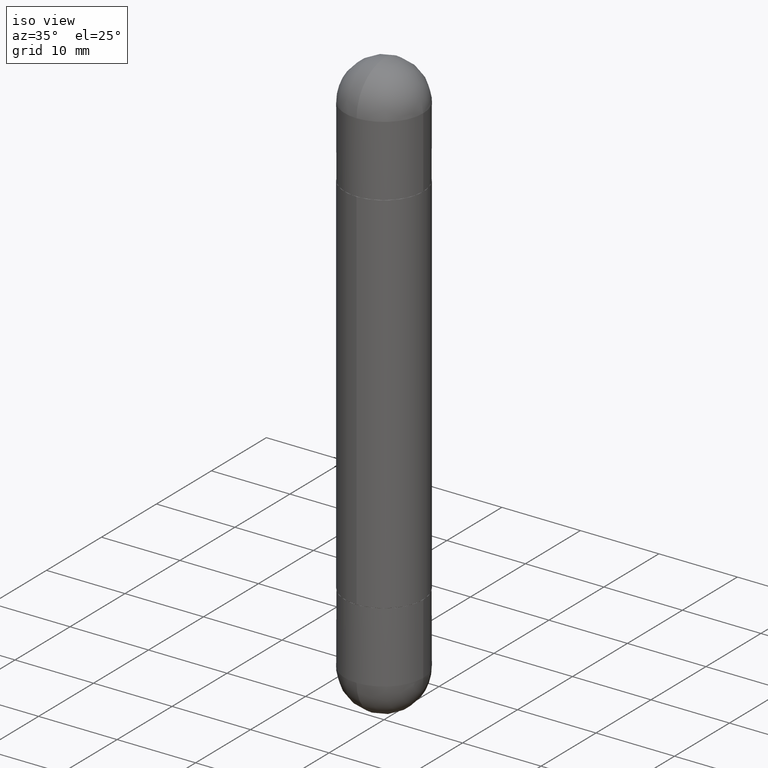
[diagram: clean part render]
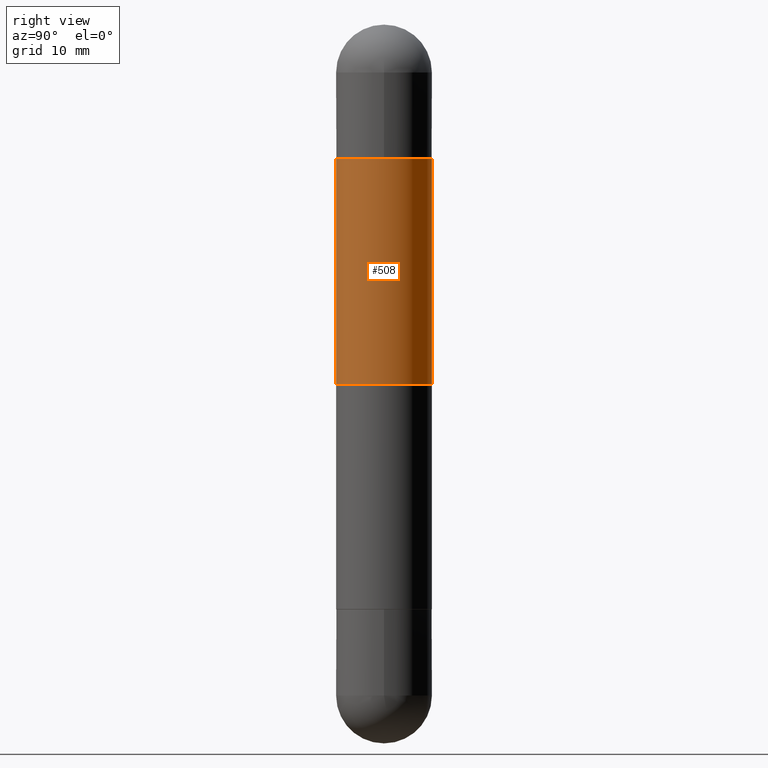
[diagram: tour spotlight — one face highlighted and labeled with its STEP entity id]
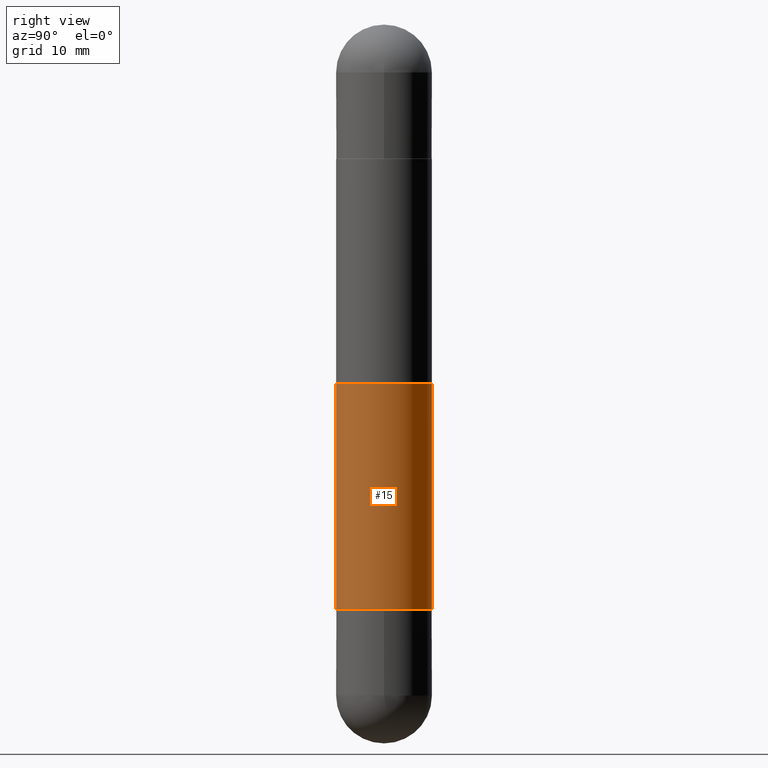
[diagram: tour spotlight — one face highlighted and labeled with its STEP entity id]
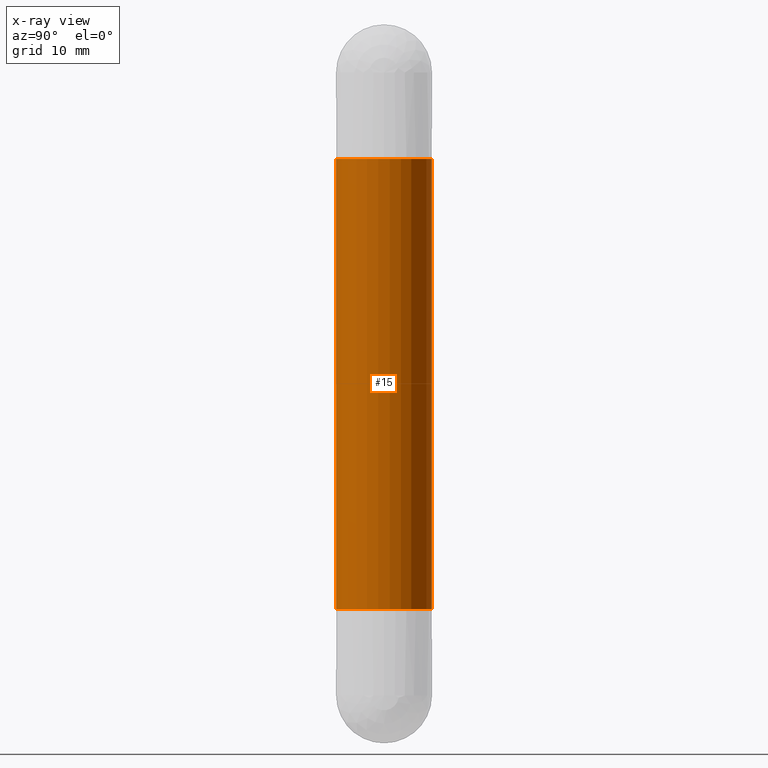
[diagram: x-ray of the same camera — body ghosted, this tour face saturated]
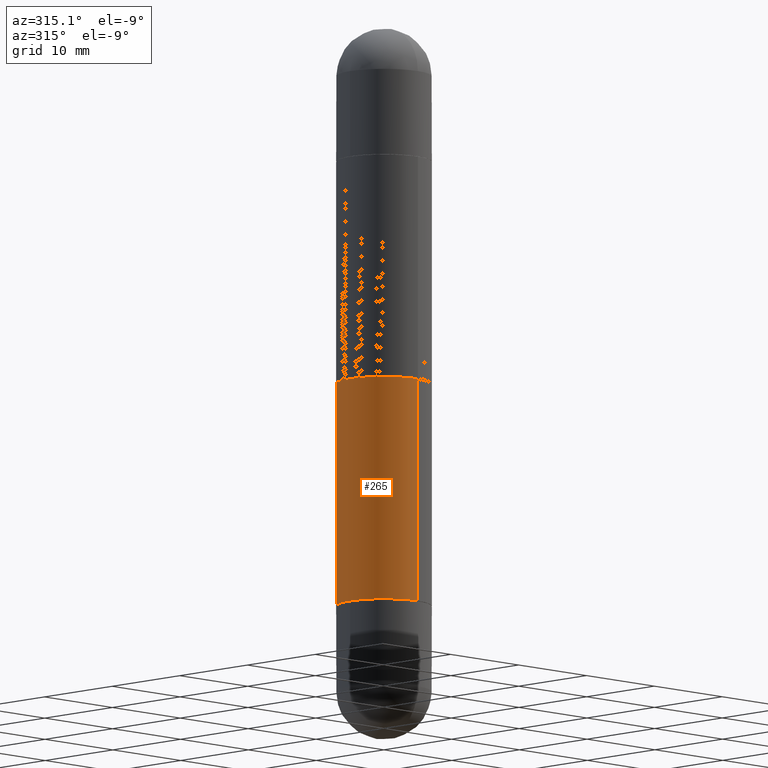
[diagram: tour spotlight — one face highlighted and labeled with its STEP entity id]
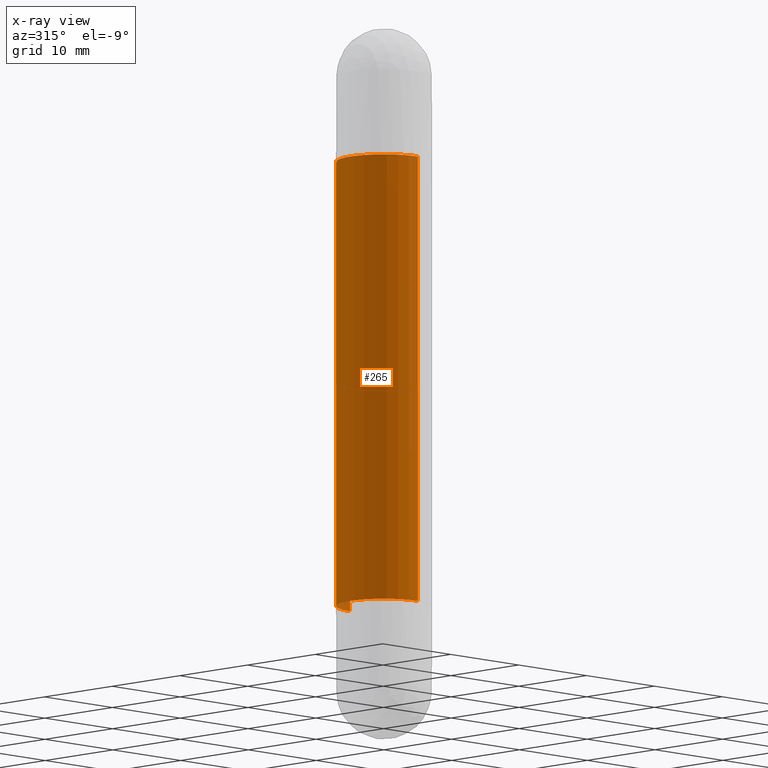
[diagram: x-ray of the same camera — body ghosted, this tour face saturated]
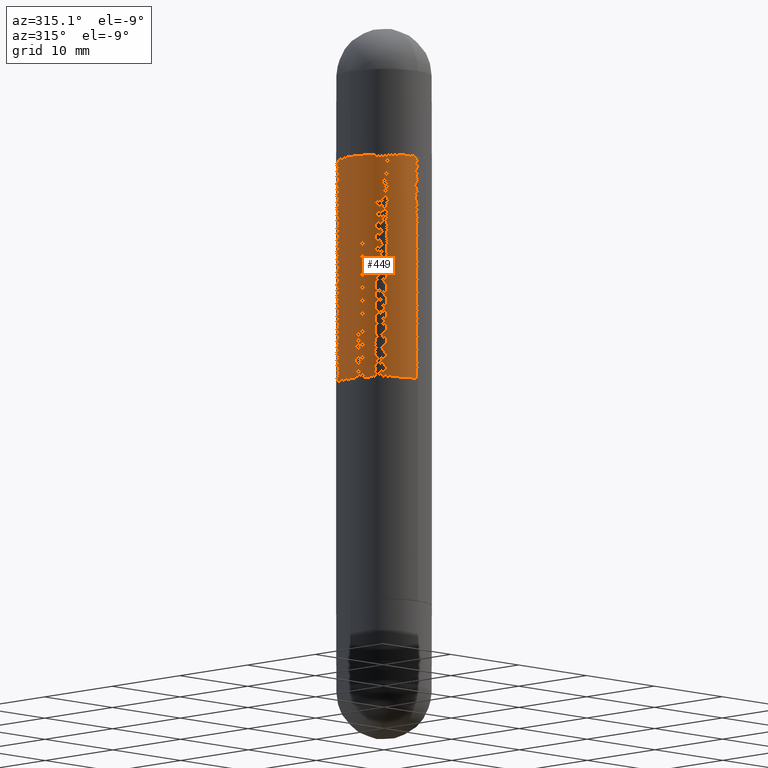
[diagram: tour spotlight — one face highlighted and labeled with its STEP entity id]
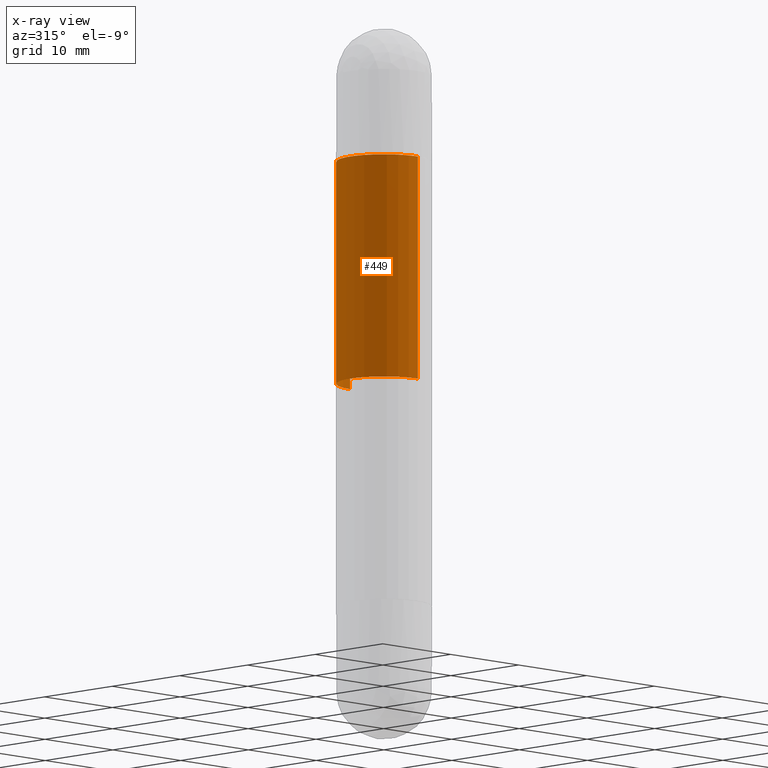
[diagram: x-ray of the same camera — body ghosted, this tour face saturated]
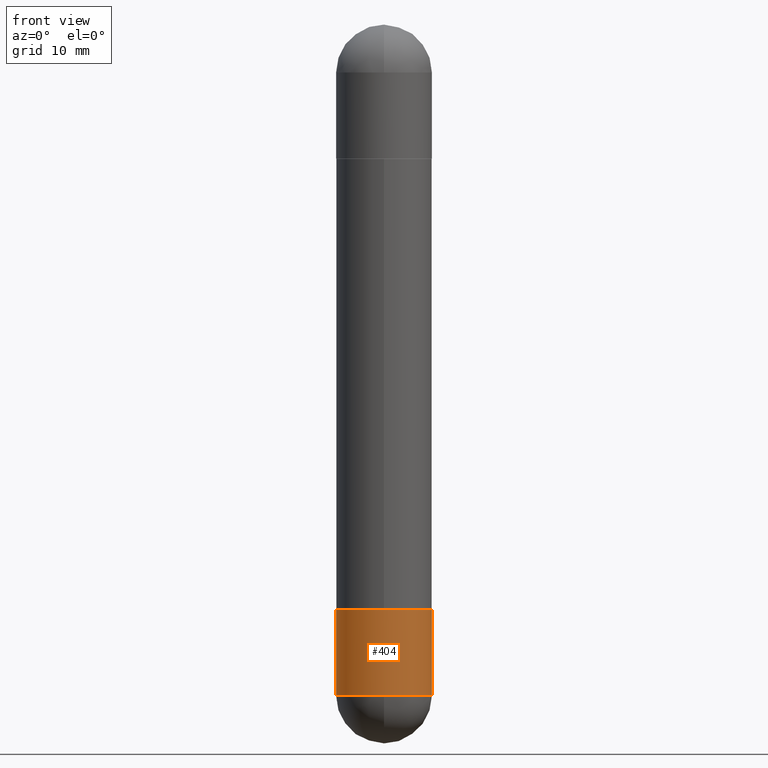
[diagram: tour spotlight — one face highlighted and labeled with its STEP entity id]
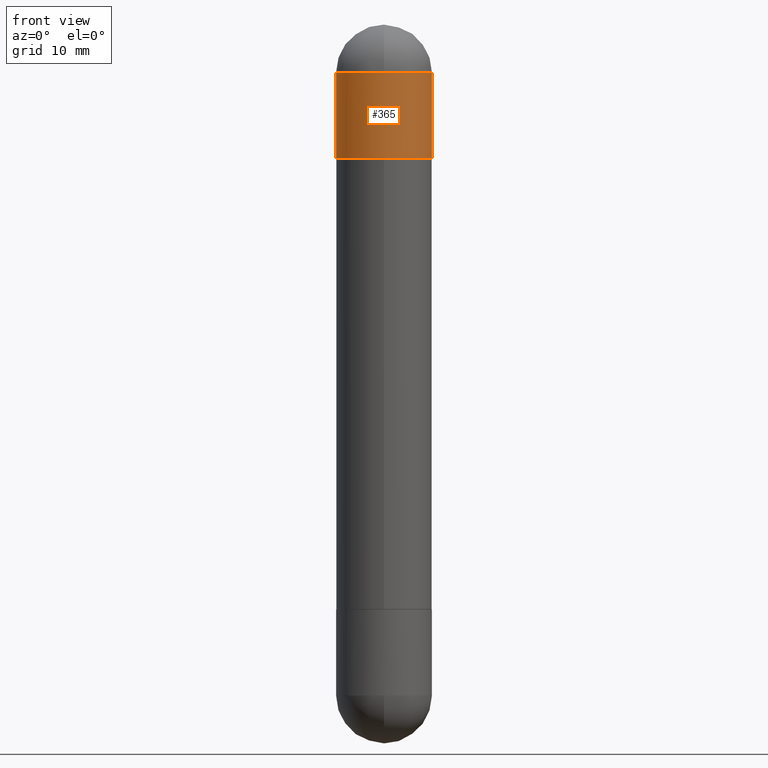
[diagram: tour spotlight — one face highlighted and labeled with its STEP entity id]
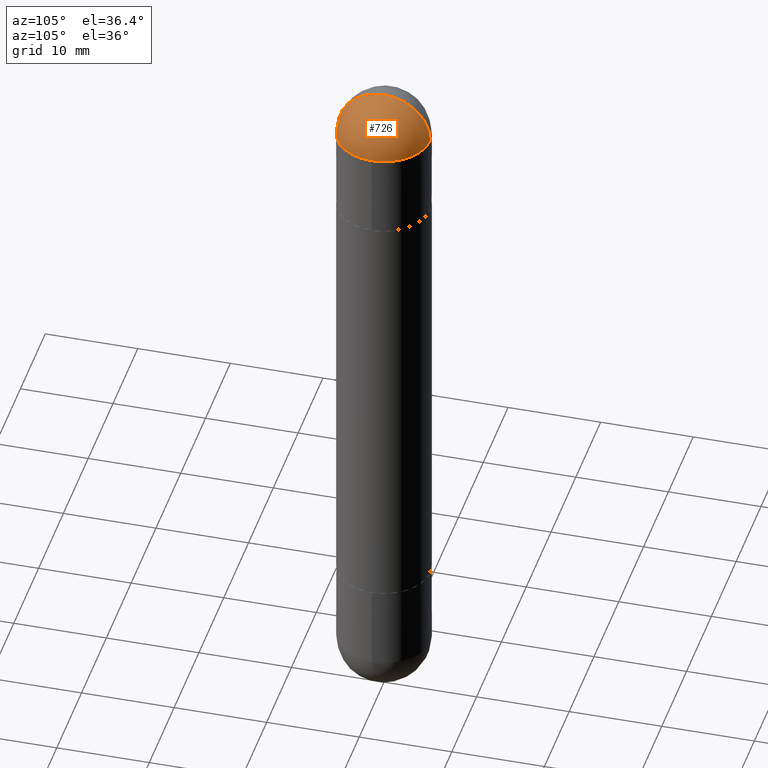
[diagram: tour spotlight — one face highlighted and labeled with its STEP entity id]
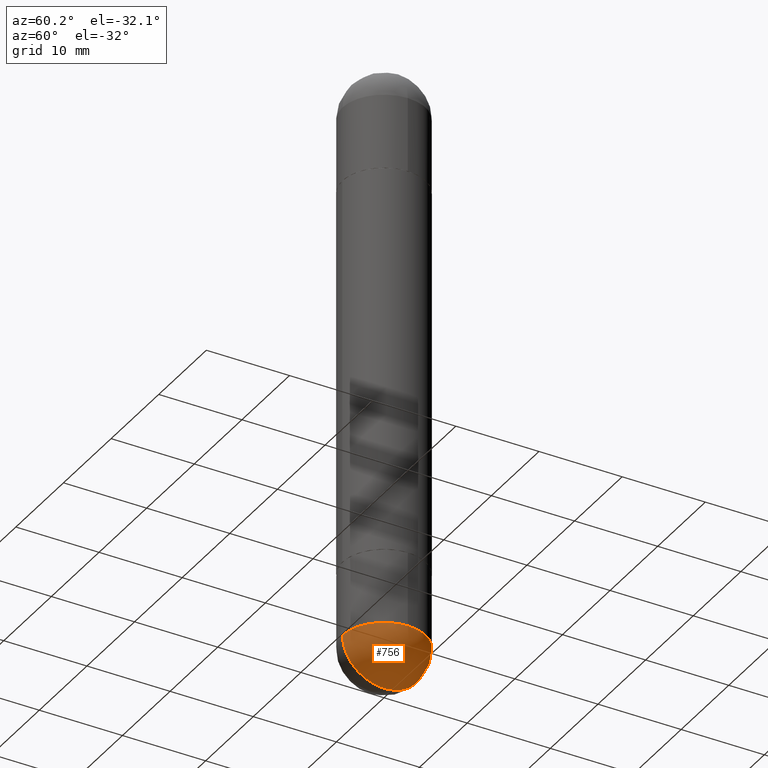
[diagram: tour spotlight — one face highlighted and labeled with its STEP entity id]
A machine part: a face-by-face anatomy tour. The part has 29 B-rep faces; the first image is the clean iso view, then the 8 largest visible faces are spotlighted one at a time (largest first), each with its STEP entity span.

Face 1 — right view, entity #508. In plain terms, the highlighted cylindrical surface (partial cylindrical patch) has radius 5 mm, axis along (-0, 0, -1).
Definition (entity closure, byte-faithful):
#16 = VERTEX_POINT ( 'NONE', #668 ) ;
#24 = CARTESIAN_POINT ( 'NONE',  ( 0.000000000000000000, 0.000000000000000000, -2.952799999999999869 ) ) ;
#81 = VECTOR ( 'NONE', #575, 39.37007874015748143 ) ;
#95 = CARTESIAN_POINT ( 'NONE',  ( -1.374596203102542397E-15, -0.1968500000000001360, -2.952800000000000313 ) ) ;
#117 = AXIS2_PLACEMENT_3D ( 'NONE', #470, #282, #343 ) ;
#119 = CARTESIAN_POINT ( 'NONE',  ( 3.609979118165281973E-29, -5.155554868828087801E-15, -1.476399999999999935 ) ) ;
#143 = CARTESIAN_POINT ( 'NONE',  ( 1.350489030861385580E-15, 0.1968499999999950012, -1.476399999999999935 ) ) ;
#169 = ORIENTED_EDGE ( 'NONE', *, *, #248, .T. ) ;
#184 = DIRECTION ( 'NONE',  ( -2.445122675538662904E-29, 3.491977017629428547E-15, -1.000000000000000000 ) ) ;
#248 = EDGE_CURVE ( 'NONE', #256, #479, #790, .T. ) ;
#256 = VERTEX_POINT ( 'NONE', #669 ) ;
#282 = DIRECTION ( 'NONE',  ( 2.445122675538663184E-29, -3.491977017629428547E-15, 1.000000000000000000 ) ) ;
#336 = ORIENTED_EDGE ( 'NONE', *, *, #581, .F. ) ;
#343 = DIRECTION ( 'NONE',  ( -6.982962677686265133E-15, -1.000000000000000000, -3.469453890861390051E-15 ) ) ;
#371 = DIRECTION ( 'NONE',  ( -1.000000000000000000, 0.000000000000000000, 0.000000000000000000 ) ) ;
#388 = EDGE_CURVE ( 'NONE', #500, #479, #509, .T. ) ;
#394 = DIRECTION ( 'NONE',  ( -6.982962677686265922E-15, -1.000000000000000000, -2.775563112689114723E-15 ) ) ;
#436 = EDGE_CURVE ( 'NONE', #16, #500, #518, .T. ) ;
#443 = DIRECTION ( 'NONE',  ( -0.000000000000000000, -0.000000000000000000, -1.000000000000000000 ) ) ;
#470 = CARTESIAN_POINT ( 'NONE',  ( 5.869761494898114064E-29, -8.382840028521204058E-15, -0.5522000000000002462 ) ) ;
#479 = VERTEX_POINT ( 'NONE', #527 ) ;
#500 = VERTEX_POINT ( 'NONE', #143 ) ;
#508 = ADVANCED_FACE ( 'NONE', ( #593 ), #597, .T. ) ;
#509 = CIRCLE ( 'NONE', #607, 0.1968500000000001360 ) ;
#513 = DIRECTION ( 'NONE',  ( -2.445122675538663184E-29, 3.491977017629428547E-15, -1.000000000000000000 ) ) ;
#518 = LINE ( 'NONE', #658, #81 ) ;
#527 = CARTESIAN_POINT ( 'NONE',  ( -1.374596203102494868E-15, -0.1968500000000052985, -1.476399999999999935 ) ) ;
#564 = EDGE_LOOP ( 'NONE', ( #764, #336, #169, #763 ) ) ;
#575 = DIRECTION ( 'NONE',  ( -2.445122675538662904E-29, 3.491977017629428547E-15, -1.000000000000000000 ) ) ;
#581 = EDGE_CURVE ( 'NONE', #256, #16, #784, .T. ) ;
#593 = FACE_OUTER_BOUND ( 'NONE', #564, .T. ) ;
#597 = CYLINDRICAL_SURFACE ( 'NONE', #724, 0.1968500000000001360 ) ;
#607 = AXIS2_PLACEMENT_3D ( 'NONE', #119, #443, #371 ) ;
#658 = CARTESIAN_POINT ( 'NONE',  ( 1.350489030861326809E-15, 0.1968500000000001360, -2.952799999999998981 ) ) ;
#668 = CARTESIAN_POINT ( 'NONE',  ( 1.350489030861386763E-15, 0.1968499999999919203, -0.5521999999999994690 ) ) ;
#669 = CARTESIAN_POINT ( 'NONE',  ( -1.374596203102485008E-15, -0.1968500000000087125, -0.5522000000000009123 ) ) ;
#689 = VECTOR ( 'NONE', #184, 39.37007874015748143 ) ;
#724 = AXIS2_PLACEMENT_3D ( 'NONE', #24, #513, #394 ) ;
#763 = ORIENTED_EDGE ( 'NONE', *, *, #388, .F. ) ;
#764 = ORIENTED_EDGE ( 'NONE', *, *, #436, .F. ) ;
#784 = CIRCLE ( 'NONE', #117, 0.1968500000000003303 ) ;
#790 = LINE ( 'NONE', #95, #689 ) ;

Face 2 — right view, entity #15. An x-ray twin of the same camera follows (body ghosted, this face saturated) — the face is partly hidden behind the body. In plain terms, the highlighted cylindrical surface (partial cylindrical patch) has radius 5 mm, axis along (-0, 0, -1).
Definition (entity closure, byte-faithful):
#15 = ADVANCED_FACE ( 'NONE', ( #346 ), #608, .T. ) ;
#44 = DIRECTION ( 'NONE',  ( -2.445122675538663184E-29, 3.491977017629428547E-15, -1.000000000000000000 ) ) ;
#88 = EDGE_CURVE ( 'NONE', #660, #519, #127, .T. ) ;
#109 = CARTESIAN_POINT ( 'NONE',  ( 1.350489030861326809E-15, 0.1968500000000001360, -2.952799999999998981 ) ) ;
#113 = EDGE_LOOP ( 'NONE', ( #174, #775, #205, #122 ) ) ;
#122 = ORIENTED_EDGE ( 'NONE', *, *, #383, .T. ) ;
#127 = CIRCLE ( 'NONE', #609, 0.1968500000000003303 ) ;
#134 = EDGE_CURVE ( 'NONE', #660, #298, #312, .T. ) ;
#174 = ORIENTED_EDGE ( 'NONE', *, *, #678, .F. ) ;
#176 = CIRCLE ( 'NONE', #635, 0.1968500000000003303 ) ;
#205 = ORIENTED_EDGE ( 'NONE', *, *, #134, .T. ) ;
#231 = LINE ( 'NONE', #109, #482 ) ;
#251 = VECTOR ( 'NONE', #640, 39.37007874015748143 ) ;
#261 = CARTESIAN_POINT ( 'NONE',  ( 5.869761494898114064E-29, -8.382840028521204058E-15, -2.400599999999999401 ) ) ;
#264 = CARTESIAN_POINT ( 'NONE',  ( 1.350489030861386763E-15, 0.1968499999999919203, -0.5521999999999994690 ) ) ;
#298 = VERTEX_POINT ( 'NONE', #684 ) ;
#312 = LINE ( 'NONE', #502, #251 ) ;
#346 = FACE_OUTER_BOUND ( 'NONE', #113, .T. ) ;
#361 = DIRECTION ( 'NONE',  ( -2.445122675538662904E-29, 3.491977017629428547E-15, -1.000000000000000000 ) ) ;
#364 = DIRECTION ( 'NONE',  ( -6.982962677686265133E-15, -1.000000000000000000, 4.163344669033668535E-15 ) ) ;
#383 = EDGE_CURVE ( 'NONE', #298, #389, #176, .T. ) ;
#389 = VERTEX_POINT ( 'NONE', #627 ) ;
#482 = VECTOR ( 'NONE', #361, 39.37007874015748143 ) ;
#485 = DIRECTION ( 'NONE',  ( -2.445122675538663184E-29, 3.491977017629428547E-15, 1.000000000000000000 ) ) ;
#502 = CARTESIAN_POINT ( 'NONE',  ( -1.374596203102542397E-15, -0.1968500000000001360, -2.952800000000000313 ) ) ;
#519 = VERTEX_POINT ( 'NONE', #264 ) ;
#521 = DIRECTION ( 'NONE',  ( 2.445122675538663184E-29, -3.491977017629428547E-15, 1.000000000000000000 ) ) ;
#538 = CARTESIAN_POINT ( 'NONE',  ( 0.000000000000000000, 0.000000000000000000, -2.952799999999999869 ) ) ;
#541 = CARTESIAN_POINT ( 'NONE',  ( -1.374596203102485008E-15, -0.1968500000000087125, -0.5522000000000009123 ) ) ;
#608 = CYLINDRICAL_SURFACE ( 'NONE', #757, 0.1968500000000001360 ) ;
#609 = AXIS2_PLACEMENT_3D ( 'NONE', #710, #521, #781 ) ;
#627 = CARTESIAN_POINT ( 'NONE',  ( 1.350489030861363491E-15, 0.1968499999999919481, -2.400600000000000289 ) ) ;
#635 = AXIS2_PLACEMENT_3D ( 'NONE', #261, #485, #364 ) ;
#640 = DIRECTION ( 'NONE',  ( -2.445122675538662904E-29, 3.491977017629428547E-15, -1.000000000000000000 ) ) ;
#660 = VERTEX_POINT ( 'NONE', #541 ) ;
#678 = EDGE_CURVE ( 'NONE', #519, #389, #231, .T. ) ;
#684 = CARTESIAN_POINT ( 'NONE',  ( -1.374596203102485008E-15, -0.1968500000000086847, -2.400599999999998513 ) ) ;
#710 = CARTESIAN_POINT ( 'NONE',  ( 5.869761494898114064E-29, -8.382840028521204058E-15, -0.5522000000000002462 ) ) ;
#757 = AXIS2_PLACEMENT_3D ( 'NONE', #538, #44, #794 ) ;
#775 = ORIENTED_EDGE ( 'NONE', *, *, #88, .F. ) ;
#781 = DIRECTION ( 'NONE',  ( -6.982962677686265133E-15, -1.000000000000000000, -3.469453890861390051E-15 ) ) ;
#794 = DIRECTION ( 'NONE',  ( -6.982962677686265922E-15, -1.000000000000000000, -2.775563112689114723E-15 ) ) ;

Face 3 — auxiliary view, entity #265. An x-ray twin of the same camera follows (body ghosted, this face saturated) — the face is partly hidden behind the body. In plain terms, the highlighted cylindrical surface (partial cylindrical patch) has radius 5 mm, axis along (-0, 0, -1).
Definition (entity closure, byte-faithful):
#65 = FACE_OUTER_BOUND ( 'NONE', #223, .T. ) ;
#72 = CYLINDRICAL_SURFACE ( 'NONE', #582, 0.1968500000000001360 ) ;
#107 = DIRECTION ( 'NONE',  ( -6.982962677686265133E-15, -1.000000000000000000, 4.163344669033668535E-15 ) ) ;
#109 = CARTESIAN_POINT ( 'NONE',  ( 1.350489030861326809E-15, 0.1968500000000001360, -2.952799999999998981 ) ) ;
#134 = EDGE_CURVE ( 'NONE', #660, #298, #312, .T. ) ;
#148 = ORIENTED_EDGE ( 'NONE', *, *, #134, .F. ) ;
#191 = EDGE_CURVE ( 'NONE', #389, #298, #595, .T. ) ;
#217 = AXIS2_PLACEMENT_3D ( 'NONE', #302, #738, #107 ) ;
#219 = EDGE_CURVE ( 'NONE', #519, #660, #351, .T. ) ;
#223 = EDGE_LOOP ( 'NONE', ( #569, #749, #286, #148 ) ) ;
#231 = LINE ( 'NONE', #109, #482 ) ;
#251 = VECTOR ( 'NONE', #640, 39.37007874015748143 ) ;
#264 = CARTESIAN_POINT ( 'NONE',  ( 1.350489030861386763E-15, 0.1968499999999919203, -0.5521999999999994690 ) ) ;
#265 = ADVANCED_FACE ( 'NONE', ( #65 ), #72, .T. ) ;
#286 = ORIENTED_EDGE ( 'NONE', *, *, #191, .T. ) ;
#298 = VERTEX_POINT ( 'NONE', #684 ) ;
#302 = CARTESIAN_POINT ( 'NONE',  ( 5.869761494898114064E-29, -8.382840028521204058E-15, -2.400599999999999401 ) ) ;
#312 = LINE ( 'NONE', #502, #251 ) ;
#313 = CARTESIAN_POINT ( 'NONE',  ( 0.000000000000000000, 0.000000000000000000, -2.952799999999999869 ) ) ;
#318 = DIRECTION ( 'NONE',  ( -6.982962677686265922E-15, -1.000000000000000000, -2.775563112689114723E-15 ) ) ;
#331 = CARTESIAN_POINT ( 'NONE',  ( 5.869761494898114064E-29, -8.382840028521204058E-15, -0.5522000000000002462 ) ) ;
#351 = CIRCLE ( 'NONE', #634, 0.1968500000000003303 ) ;
#361 = DIRECTION ( 'NONE',  ( -2.445122675538662904E-29, 3.491977017629428547E-15, -1.000000000000000000 ) ) ;
#389 = VERTEX_POINT ( 'NONE', #627 ) ;
#482 = VECTOR ( 'NONE', #361, 39.37007874015748143 ) ;
#502 = CARTESIAN_POINT ( 'NONE',  ( -1.374596203102542397E-15, -0.1968500000000001360, -2.952800000000000313 ) ) ;
#519 = VERTEX_POINT ( 'NONE', #264 ) ;
#541 = CARTESIAN_POINT ( 'NONE',  ( -1.374596203102485008E-15, -0.1968500000000087125, -0.5522000000000009123 ) ) ;
#557 = DIRECTION ( 'NONE',  ( -2.445122675538663184E-29, 3.491977017629428547E-15, -1.000000000000000000 ) ) ;
#569 = ORIENTED_EDGE ( 'NONE', *, *, #219, .F. ) ;
#582 = AXIS2_PLACEMENT_3D ( 'NONE', #313, #557, #318 ) ;
#587 = DIRECTION ( 'NONE',  ( -6.982962677686265133E-15, -1.000000000000000000, -3.469453890861390051E-15 ) ) ;
#595 = CIRCLE ( 'NONE', #217, 0.1968500000000003303 ) ;
#627 = CARTESIAN_POINT ( 'NONE',  ( 1.350489030861363491E-15, 0.1968499999999919481, -2.400600000000000289 ) ) ;
#634 = AXIS2_PLACEMENT_3D ( 'NONE', #331, #711, #587 ) ;
#640 = DIRECTION ( 'NONE',  ( -2.445122675538662904E-29, 3.491977017629428547E-15, -1.000000000000000000 ) ) ;
#660 = VERTEX_POINT ( 'NONE', #541 ) ;
#678 = EDGE_CURVE ( 'NONE', #519, #389, #231, .T. ) ;
#684 = CARTESIAN_POINT ( 'NONE',  ( -1.374596203102485008E-15, -0.1968500000000086847, -2.400599999999998513 ) ) ;
#711 = DIRECTION ( 'NONE',  ( 2.445122675538663184E-29, -3.491977017629428547E-15, 1.000000000000000000 ) ) ;
#738 = DIRECTION ( 'NONE',  ( -2.445122675538663184E-29, 3.491977017629428547E-15, 1.000000000000000000 ) ) ;
#749 = ORIENTED_EDGE ( 'NONE', *, *, #678, .T. ) ;

Face 4 — auxiliary view, entity #449. An x-ray twin of the same camera follows (body ghosted, this face saturated) — the face is partly hidden behind the body. In plain terms, the highlighted cylindrical surface (partial cylindrical patch) has radius 5 mm, axis along (-0, 0, -1).
Definition (entity closure, byte-faithful):
#4 = CIRCLE ( 'NONE', #82, 0.1968500000000001360 ) ;
#16 = VERTEX_POINT ( 'NONE', #668 ) ;
#26 = ORIENTED_EDGE ( 'NONE', *, *, #570, .F. ) ;
#81 = VECTOR ( 'NONE', #575, 39.37007874015748143 ) ;
#82 = AXIS2_PLACEMENT_3D ( 'NONE', #665, #421, #799 ) ;
#86 = CARTESIAN_POINT ( 'NONE',  ( 0.000000000000000000, 0.000000000000000000, -2.952799999999999869 ) ) ;
#95 = CARTESIAN_POINT ( 'NONE',  ( -1.374596203102542397E-15, -0.1968500000000001360, -2.952800000000000313 ) ) ;
#143 = CARTESIAN_POINT ( 'NONE',  ( 1.350489030861385580E-15, 0.1968499999999950012, -1.476399999999999935 ) ) ;
#184 = DIRECTION ( 'NONE',  ( -2.445122675538662904E-29, 3.491977017629428547E-15, -1.000000000000000000 ) ) ;
#213 = CYLINDRICAL_SURFACE ( 'NONE', #467, 0.1968500000000001360 ) ;
#221 = DIRECTION ( 'NONE',  ( 2.445122675538663184E-29, -3.491977017629428547E-15, 1.000000000000000000 ) ) ;
#225 = CARTESIAN_POINT ( 'NONE',  ( 5.869761494898114064E-29, -8.382840028521204058E-15, -0.5522000000000002462 ) ) ;
#248 = EDGE_CURVE ( 'NONE', #256, #479, #790, .T. ) ;
#256 = VERTEX_POINT ( 'NONE', #669 ) ;
#283 = DIRECTION ( 'NONE',  ( -6.982962677686265133E-15, -1.000000000000000000, -3.469453890861390051E-15 ) ) ;
#316 = AXIS2_PLACEMENT_3D ( 'NONE', #225, #221, #283 ) ;
#332 = DIRECTION ( 'NONE',  ( -2.445122675538663184E-29, 3.491977017629428547E-15, -1.000000000000000000 ) ) ;
#354 = ORIENTED_EDGE ( 'NONE', *, *, #436, .T. ) ;
#421 = DIRECTION ( 'NONE',  ( -0.000000000000000000, -0.000000000000000000, -1.000000000000000000 ) ) ;
#436 = EDGE_CURVE ( 'NONE', #16, #500, #518, .T. ) ;
#449 = ADVANCED_FACE ( 'NONE', ( #450 ), #213, .T. ) ;
#450 = FACE_OUTER_BOUND ( 'NONE', #694, .T. ) ;
#467 = AXIS2_PLACEMENT_3D ( 'NONE', #86, #332, #506 ) ;
#479 = VERTEX_POINT ( 'NONE', #527 ) ;
#500 = VERTEX_POINT ( 'NONE', #143 ) ;
#506 = DIRECTION ( 'NONE',  ( -6.982962677686265922E-15, -1.000000000000000000, -2.775563112689114723E-15 ) ) ;
#518 = LINE ( 'NONE', #658, #81 ) ;
#527 = CARTESIAN_POINT ( 'NONE',  ( -1.374596203102494868E-15, -0.1968500000000052985, -1.476399999999999935 ) ) ;
#537 = CIRCLE ( 'NONE', #316, 0.1968500000000003303 ) ;
#570 = EDGE_CURVE ( 'NONE', #16, #256, #537, .T. ) ;
#575 = DIRECTION ( 'NONE',  ( -2.445122675538662904E-29, 3.491977017629428547E-15, -1.000000000000000000 ) ) ;
#589 = ORIENTED_EDGE ( 'NONE', *, *, #248, .F. ) ;
#658 = CARTESIAN_POINT ( 'NONE',  ( 1.350489030861326809E-15, 0.1968500000000001360, -2.952799999999998981 ) ) ;
#665 = CARTESIAN_POINT ( 'NONE',  ( 3.609979118165281973E-29, -5.155554868828087801E-15, -1.476399999999999935 ) ) ;
#668 = CARTESIAN_POINT ( 'NONE',  ( 1.350489030861386763E-15, 0.1968499999999919203, -0.5521999999999994690 ) ) ;
#669 = CARTESIAN_POINT ( 'NONE',  ( -1.374596203102485008E-15, -0.1968500000000087125, -0.5522000000000009123 ) ) ;
#670 = EDGE_CURVE ( 'NONE', #479, #500, #4, .T. ) ;
#689 = VECTOR ( 'NONE', #184, 39.37007874015748143 ) ;
#694 = EDGE_LOOP ( 'NONE', ( #26, #354, #734, #589 ) ) ;
#734 = ORIENTED_EDGE ( 'NONE', *, *, #670, .F. ) ;
#790 = LINE ( 'NONE', #95, #689 ) ;
#799 = DIRECTION ( 'NONE',  ( -1.000000000000000000, 0.000000000000000000, 0.000000000000000000 ) ) ;

Face 5 — front view, entity #404. In plain terms, the highlighted cylindrical surface (partial cylindrical patch) has radius 5 mm, axis along (-0, 0, 1).
Definition (entity closure, byte-faithful):
#11 = DIRECTION ( 'NONE',  ( -2.445468806185136597E-29, 3.491481338843145583E-15, 1.000000000000000000 ) ) ;
#13 = DIRECTION ( 'NONE',  ( -2.445468806185136597E-29, 3.491481338843145583E-15, 1.000000000000000000 ) ) ;
#17 = DIRECTION ( 'NONE',  ( 1.000000000000000000, -6.982962677686262766E-15, 0.000000000000000000 ) ) ;
#22 = DIRECTION ( 'NONE',  ( -2.445468806185136597E-29, 3.491481338843145583E-15, 1.000000000000000000 ) ) ;
#61 = VECTOR ( 'NONE', #699, 39.37007874015748143 ) ;
#69 = DIRECTION ( 'NONE',  ( 1.000000000000000000, -6.982962677686266711E-15, 0.000000000000000000 ) ) ;
#101 = CIRCLE ( 'NONE', #455, 0.1968500000000000527 ) ;
#110 = DIRECTION ( 'NONE',  ( -2.445468806185136597E-29, 3.491481338843145583E-15, 1.000000000000000000 ) ) ;
#128 = CARTESIAN_POINT ( 'NONE',  ( -0.1968500000000000527, -7.605041414231473522E-15, -2.755949999999999900 ) ) ;
#160 = VECTOR ( 'NONE', #337, 39.37007874015748143 ) ;
#172 = VERTEX_POINT ( 'NONE', #652 ) ;
#206 = EDGE_CURVE ( 'NONE', #353, #408, #416, .T. ) ;
#238 = DIRECTION ( 'NONE',  ( 1.000000000000000000, -6.982962677686266711E-15, 0.000000000000000000 ) ) ;
#244 = CARTESIAN_POINT ( 'NONE',  ( 6.739589756405927064E-29, -9.622347995784766935E-15, -2.755949999999999900 ) ) ;
#249 = CARTESIAN_POINT ( 'NONE',  ( 0.1968500000000000527, -1.374596203102542003E-15, 9.598753983154302260E-30 ) ) ;
#276 = CARTESIAN_POINT ( 'NONE',  ( 5.873037884934223228E-29, -8.385141583365697263E-15, -2.401599999999999735 ) ) ;
#337 = DIRECTION ( 'NONE',  ( -2.445468806185136877E-29, 3.491481338843145188E-15, 1.000000000000000000 ) ) ;
#353 = VERTEX_POINT ( 'NONE', #128 ) ;
#357 = CARTESIAN_POINT ( 'NONE',  ( 0.1968500000000000250, -9.759737786468237294E-15, -2.401599999999999735 ) ) ;
#374 = EDGE_CURVE ( 'NONE', #408, #514, #101, .T. ) ;
#377 = LINE ( 'NONE', #249, #61 ) ;
#398 = CYLINDRICAL_SURFACE ( 'NONE', #492, 0.1968500000000000527 ) ;
#400 = DIRECTION ( 'NONE',  ( 1.000000000000000000, -6.982962677686266711E-15, 4.876176775795935793E-29 ) ) ;
#404 = ADVANCED_FACE ( 'NONE', ( #461 ), #398, .T. ) ;
#408 = VERTEX_POINT ( 'NONE', #787 ) ;
#416 = CIRCLE ( 'NONE', #649, 0.1968500000000000527 ) ;
#422 = EDGE_CURVE ( 'NONE', #172, #630, #662, .T. ) ;
#455 = AXIS2_PLACEMENT_3D ( 'NONE', #697, #11, #69 ) ;
#461 = FACE_OUTER_BOUND ( 'NONE', #786, .T. ) ;
#481 = EDGE_CURVE ( 'NONE', #353, #172, #645, .T. ) ;
#492 = AXIS2_PLACEMENT_3D ( 'NONE', #641, #13, #400 ) ;
#514 = VERTEX_POINT ( 'NONE', #588 ) ;
#548 = ORIENTED_EDGE ( 'NONE', *, *, #206, .T. ) ;
#549 = ORIENTED_EDGE ( 'NONE', *, *, #422, .F. ) ;
#588 = CARTESIAN_POINT ( 'NONE',  ( 0.1968500000000000527, -1.037834099267777371E-14, -2.755949999999999900 ) ) ;
#630 = VERTEX_POINT ( 'NONE', #357 ) ;
#641 = CARTESIAN_POINT ( 'NONE',  ( 0.000000000000000000, 0.000000000000000000, 0.000000000000000000 ) ) ;
#645 = LINE ( 'NONE', #718, #160 ) ;
#649 = AXIS2_PLACEMENT_3D ( 'NONE', #244, #110, #238 ) ;
#652 = CARTESIAN_POINT ( 'NONE',  ( -0.1968500000000000250, -7.605041414231473522E-15, -2.401599999999999735 ) ) ;
#659 = ORIENTED_EDGE ( 'NONE', *, *, #687, .T. ) ;
#662 = CIRCLE ( 'NONE', #796, 0.1968500000000000250 ) ;
#675 = ORIENTED_EDGE ( 'NONE', *, *, #481, .F. ) ;
#687 = EDGE_CURVE ( 'NONE', #514, #630, #377, .T. ) ;
#697 = CARTESIAN_POINT ( 'NONE',  ( 6.739589756405927064E-29, -9.622347995784766935E-15, -2.755949999999999900 ) ) ;
#699 = DIRECTION ( 'NONE',  ( -2.445468806185136877E-29, 3.491481338843145188E-15, 1.000000000000000000 ) ) ;
#718 = CARTESIAN_POINT ( 'NONE',  ( -0.1968500000000000527, 1.398703375343757590E-15, -9.682923725166785079E-30 ) ) ;
#719 = ORIENTED_EDGE ( 'NONE', *, *, #374, .T. ) ;
#786 = EDGE_LOOP ( 'NONE', ( #675, #548, #719, #659, #549 ) ) ;
#787 = CARTESIAN_POINT ( 'NONE',  ( -1.398703375343692115E-15, -0.1968500000000099892, -2.755949999999999456 ) ) ;
#796 = AXIS2_PLACEMENT_3D ( 'NONE', #276, #22, #17 ) ;

Face 6 — front view, entity #365. In plain terms, the highlighted cylindrical surface (partial cylindrical patch) has radius 5 mm, axis along (-0, 0, -1).
Definition (entity closure, byte-faithful):
#2 = DIRECTION ( 'NONE',  ( 1.000000000000000000, -6.982962677686266711E-15, 0.000000000000000000 ) ) ;
#29 = AXIS2_PLACEMENT_3D ( 'NONE', #171, #601, #478 ) ;
#87 = EDGE_LOOP ( 'NONE', ( #695, #692, #310, #800, #535 ) ) ;
#96 = DIRECTION ( 'NONE',  ( 1.000000000000000000, -6.982962677686266711E-15, 0.000000000000000000 ) ) ;
#104 = AXIS2_PLACEMENT_3D ( 'NONE', #330, #460, #806 ) ;
#114 = CYLINDRICAL_SURFACE ( 'NONE', #621, 0.1968500000000000527 ) ;
#162 = LINE ( 'NONE', #232, #495 ) ;
#163 = EDGE_CURVE ( 'NONE', #270, #624, #162, .T. ) ;
#171 = CARTESIAN_POINT ( 'NONE',  ( 5.873037884934223228E-29, -8.385141583365697263E-15, -0.5512000000000001343 ) ) ;
#183 = EDGE_CURVE ( 'NONE', #680, #270, #458, .T. ) ;
#186 = CARTESIAN_POINT ( 'NONE',  ( 0.1968500000000000527, -1.037834099267777529E-14, -0.1968499999999998307 ) ) ;
#188 = CIRCLE ( 'NONE', #29, 0.1968500000000000250 ) ;
#196 = LINE ( 'NONE', #438, #241 ) ;
#232 = CARTESIAN_POINT ( 'NONE',  ( 0.1968500000000000527, -1.374596203102542003E-15, -2.952799999999999869 ) ) ;
#241 = VECTOR ( 'NONE', #483, 39.37007874015748143 ) ;
#270 = VERTEX_POINT ( 'NONE', #186 ) ;
#310 = ORIENTED_EDGE ( 'NONE', *, *, #585, .T. ) ;
#325 = CARTESIAN_POINT ( 'NONE',  ( -0.1968500000000000527, -7.653255758713905881E-15, -0.1968499999999998307 ) ) ;
#330 = CARTESIAN_POINT ( 'NONE',  ( 6.739589756405927064E-29, -9.622347995784766935E-15, -0.1968499999999998307 ) ) ;
#365 = ADVANCED_FACE ( 'NONE', ( #746 ), #114, .T. ) ;
#396 = VERTEX_POINT ( 'NONE', #325 ) ;
#405 = CARTESIAN_POINT ( 'NONE',  ( 0.1968500000000000250, -9.759737786468237294E-15, -0.5512000000000001343 ) ) ;
#417 = CIRCLE ( 'NONE', #578, 0.1968500000000000527 ) ;
#432 = DIRECTION ( 'NONE',  ( -2.445468806185136877E-29, 3.491481338843145188E-15, -1.000000000000000000 ) ) ;
#434 = CARTESIAN_POINT ( 'NONE',  ( 0.000000000000000000, 0.000000000000000000, -2.952799999999999869 ) ) ;
#437 = VERTEX_POINT ( 'NONE', #778 ) ;
#438 = CARTESIAN_POINT ( 'NONE',  ( -0.1968500000000000527, 1.350489030861326415E-15, -2.952799999999999869 ) ) ;
#458 = CIRCLE ( 'NONE', #104, 0.1968500000000000527 ) ;
#460 = DIRECTION ( 'NONE',  ( 2.445468806185136597E-29, -3.491481338843145583E-15, 1.000000000000000000 ) ) ;
#478 = DIRECTION ( 'NONE',  ( 1.000000000000000000, -6.982962677686262766E-15, 0.000000000000000000 ) ) ;
#483 = DIRECTION ( 'NONE',  ( -2.445468806185136877E-29, 3.491481338843145188E-15, -1.000000000000000000 ) ) ;
#495 = VECTOR ( 'NONE', #432, 39.37007874015748143 ) ;
#535 = ORIENTED_EDGE ( 'NONE', *, *, #183, .F. ) ;
#578 = AXIS2_PLACEMENT_3D ( 'NONE', #803, #723, #96 ) ;
#584 = EDGE_CURVE ( 'NONE', #396, #680, #417, .T. ) ;
#585 = EDGE_CURVE ( 'NONE', #437, #624, #188, .T. ) ;
#601 = DIRECTION ( 'NONE',  ( 2.445468806185136597E-29, -3.491481338843145583E-15, 1.000000000000000000 ) ) ;
#621 = AXIS2_PLACEMENT_3D ( 'NONE', #434, #686, #2 ) ;
#624 = VERTEX_POINT ( 'NONE', #405 ) ;
#667 = CARTESIAN_POINT ( 'NONE',  ( -1.350489030861260940E-15, -0.1968500000000099892, -0.1968500000000005246 ) ) ;
#680 = VERTEX_POINT ( 'NONE', #667 ) ;
#686 = DIRECTION ( 'NONE',  ( -2.445468806185136597E-29, 3.491481338843145583E-15, -1.000000000000000000 ) ) ;
#692 = ORIENTED_EDGE ( 'NONE', *, *, #767, .T. ) ;
#695 = ORIENTED_EDGE ( 'NONE', *, *, #584, .F. ) ;
#723 = DIRECTION ( 'NONE',  ( 2.445468806185136597E-29, -3.491481338843145583E-15, 1.000000000000000000 ) ) ;
#746 = FACE_OUTER_BOUND ( 'NONE', #87, .T. ) ;
#767 = EDGE_CURVE ( 'NONE', #396, #437, #196, .T. ) ;
#778 = CARTESIAN_POINT ( 'NONE',  ( -0.1968500000000000250, -7.653255758713905881E-15, -0.5512000000000001343 ) ) ;
#800 = ORIENTED_EDGE ( 'NONE', *, *, #163, .F. ) ;
#803 = CARTESIAN_POINT ( 'NONE',  ( 6.739589756405927064E-29, -9.622347995784766935E-15, -0.1968499999999998307 ) ) ;
#806 = DIRECTION ( 'NONE',  ( 1.000000000000000000, -6.982962677686266711E-15, 0.000000000000000000 ) ) ;

Face 7 — auxiliary view, entity #726. In plain terms, the highlighted spherical surface has radius 5 mm.
Definition (entity closure, byte-faithful):
#10 = ORIENTED_EDGE ( 'NONE', *, *, #236, .T. ) ;
#21 = DIRECTION ( 'NONE',  ( -1.000000000000000000, 6.982962677686265922E-15, 4.883557194083112340E-29 ) ) ;
#54 = SPHERICAL_SURFACE ( 'NONE', #74, 0.1968500000000001915 ) ;
#74 = AXIS2_PLACEMENT_3D ( 'NONE', #124, #193, #431 ) ;
#104 = AXIS2_PLACEMENT_3D ( 'NONE', #330, #460, #806 ) ;
#124 = CARTESIAN_POINT ( 'NONE',  ( 6.408469978492040817E-29, -1.009653036392481565E-14, -0.1968499999999998307 ) ) ;
#155 = EDGE_CURVE ( 'NONE', #220, #680, #230, .T. ) ;
#158 = CARTESIAN_POINT ( 'NONE',  ( 6.739589756405927064E-29, -9.622347995784766935E-15, -0.1968499999999998307 ) ) ;
#178 = CARTESIAN_POINT ( 'NONE',  ( 6.408469978492040817E-29, -1.009653036392481565E-14, -0.1968499999999998307 ) ) ;
#179 = CIRCLE ( 'NONE', #646, 0.1968500000000001915 ) ;
#183 = EDGE_CURVE ( 'NONE', #680, #270, #458, .T. ) ;
#186 = CARTESIAN_POINT ( 'NONE',  ( 0.1968500000000000527, -1.037834099267777529E-14, -0.1968499999999998307 ) ) ;
#193 = DIRECTION ( 'NONE',  ( 1.000000000000000000, -6.982962677686265922E-15, -4.883557194083112340E-29 ) ) ;
#220 = VERTEX_POINT ( 'NONE', #392 ) ;
#224 = EDGE_CURVE ( 'NONE', #220, #552, #179, .T. ) ;
#230 = CIRCLE ( 'NONE', #562, 0.1968500000000001915 ) ;
#236 = EDGE_CURVE ( 'NONE', #270, #552, #480, .T. ) ;
#270 = VERTEX_POINT ( 'NONE', #186 ) ;
#330 = CARTESIAN_POINT ( 'NONE',  ( 6.739589756405927064E-29, -9.622347995784766935E-15, -0.1968499999999998307 ) ) ;
#392 = CARTESIAN_POINT ( 'NONE',  ( 6.898277487190832498E-29, -1.077177487935548192E-14, 3.414809992080329023E-16 ) ) ;
#403 = DIRECTION ( 'NONE',  ( 2.445468806185136597E-29, -3.491481338843145583E-15, 1.000000000000000000 ) ) ;
#431 = DIRECTION ( 'NONE',  ( 6.982962677686265922E-15, 1.000000000000000000, 3.469453890861392812E-15 ) ) ;
#447 = ORIENTED_EDGE ( 'NONE', *, *, #183, .T. ) ;
#458 = CIRCLE ( 'NONE', #104, 0.1968500000000000527 ) ;
#460 = DIRECTION ( 'NONE',  ( 2.445468806185136597E-29, -3.491481338843145583E-15, 1.000000000000000000 ) ) ;
#465 = DIRECTION ( 'NONE',  ( -6.982962677686265133E-15, -1.000000000000000000, 0.000000000000000000 ) ) ;
#480 = CIRCLE ( 'NONE', #674, 0.1968500000000000527 ) ;
#493 = ORIENTED_EDGE ( 'NONE', *, *, #155, .T. ) ;
#530 = CARTESIAN_POINT ( 'NONE',  ( 1.374596203102607873E-15, 0.1968499999999902550, -0.1968499999999991645 ) ) ;
#552 = VERTEX_POINT ( 'NONE', #530 ) ;
#556 = DIRECTION ( 'NONE',  ( 6.860497997771529985E-15, 1.000000000000000000, 0.000000000000000000 ) ) ;
#562 = AXIS2_PLACEMENT_3D ( 'NONE', #178, #619, #556 ) ;
#619 = DIRECTION ( 'NONE',  ( 1.000000000000000000, -6.860497997771530774E-15, -4.840798879624142912E-29 ) ) ;
#646 = AXIS2_PLACEMENT_3D ( 'NONE', #650, #21, #465 ) ;
#650 = CARTESIAN_POINT ( 'NONE',  ( 6.408469978492040817E-29, -1.009653036392481565E-14, -0.1968499999999998307 ) ) ;
#667 = CARTESIAN_POINT ( 'NONE',  ( -1.350489030861260940E-15, -0.1968500000000099892, -0.1968500000000005246 ) ) ;
#674 = AXIS2_PLACEMENT_3D ( 'NONE', #158, #403, #776 ) ;
#680 = VERTEX_POINT ( 'NONE', #667 ) ;
#721 = EDGE_LOOP ( 'NONE', ( #809, #493, #447, #10 ) ) ;
#726 = ADVANCED_FACE ( 'NONE', ( #745 ), #54, .T. ) ;
#745 = FACE_OUTER_BOUND ( 'NONE', #721, .T. ) ;
#776 = DIRECTION ( 'NONE',  ( 1.000000000000000000, -6.982962677686266711E-15, 0.000000000000000000 ) ) ;
#806 = DIRECTION ( 'NONE',  ( 1.000000000000000000, -6.982962677686266711E-15, 0.000000000000000000 ) ) ;
#809 = ORIENTED_EDGE ( 'NONE', *, *, #224, .F. ) ;

Face 8 — auxiliary view, entity #756. In plain terms, the highlighted spherical surface has radius 5 mm.
Definition (entity closure, byte-faithful):
#11 = DIRECTION ( 'NONE',  ( -2.445468806185136597E-29, 3.491481338843145583E-15, 1.000000000000000000 ) ) ;
#37 = ORIENTED_EDGE ( 'NONE', *, *, #471, .F. ) ;
#50 = EDGE_CURVE ( 'NONE', #412, #401, #192, .T. ) ;
#53 = DIRECTION ( 'NONE',  ( 1.000000000000000000, -6.982962677686265922E-15, 4.883557194083112340E-29 ) ) ;
#69 = DIRECTION ( 'NONE',  ( 1.000000000000000000, -6.982962677686266711E-15, 0.000000000000000000 ) ) ;
#89 = CARTESIAN_POINT ( 'NONE',  ( 6.739589756405927064E-29, -9.622347995784766935E-15, -2.755949999999999900 ) ) ;
#97 = ORIENTED_EDGE ( 'NONE', *, *, #427, .F. ) ;
#101 = CIRCLE ( 'NONE', #455, 0.1968500000000000527 ) ;
#152 = CARTESIAN_POINT ( 'NONE',  ( 6.898277487190832498E-29, -1.077177487935548192E-14, -2.952800000000000313 ) ) ;
#187 = FACE_OUTER_BOUND ( 'NONE', #804, .T. ) ;
#192 = CIRCLE ( 'NONE', #355, 0.1968500000000001915 ) ;
#208 = DIRECTION ( 'NONE',  ( -2.445468806185136597E-29, 3.491481338843145583E-15, 1.000000000000000000 ) ) ;
#215 = AXIS2_PLACEMENT_3D ( 'NONE', #278, #273, #522 ) ;
#258 = SPHERICAL_SURFACE ( 'NONE', #494, 0.1968500000000001915 ) ;
#273 = DIRECTION ( 'NONE',  ( -1.000000000000000000, 7.105427357601001070E-15, -4.926315508542082329E-29 ) ) ;
#278 = CARTESIAN_POINT ( 'NONE',  ( 6.408469978492040817E-29, -1.009653036392481565E-14, -2.755949999999999900 ) ) ;
#355 = AXIS2_PLACEMENT_3D ( 'NONE', #550, #53, #810 ) ;
#366 = AXIS2_PLACEMENT_3D ( 'NONE', #89, #208, #712 ) ;
#374 = EDGE_CURVE ( 'NONE', #408, #514, #101, .T. ) ;
#401 = VERTEX_POINT ( 'NONE', #716 ) ;
#408 = VERTEX_POINT ( 'NONE', #787 ) ;
#412 = VERTEX_POINT ( 'NONE', #152 ) ;
#427 = EDGE_CURVE ( 'NONE', #412, #408, #563, .T. ) ;
#455 = AXIS2_PLACEMENT_3D ( 'NONE', #697, #11, #69 ) ;
#459 = ORIENTED_EDGE ( 'NONE', *, *, #50, .T. ) ;
#471 = EDGE_CURVE ( 'NONE', #514, #401, #714, .T. ) ;
#484 = ORIENTED_EDGE ( 'NONE', *, *, #374, .F. ) ;
#494 = AXIS2_PLACEMENT_3D ( 'NONE', #814, #816, #765 ) ;
#514 = VERTEX_POINT ( 'NONE', #588 ) ;
#522 = DIRECTION ( 'NONE',  ( -7.105427357600999492E-15, -1.000000000000000000, 0.000000000000000000 ) ) ;
#550 = CARTESIAN_POINT ( 'NONE',  ( 6.408469978492040817E-29, -1.009653036392481565E-14, -2.755949999999999900 ) ) ;
#563 = CIRCLE ( 'NONE', #215, 0.1968500000000001915 ) ;
#588 = CARTESIAN_POINT ( 'NONE',  ( 0.1968500000000000527, -1.037834099267777371E-14, -2.755949999999999900 ) ) ;
#697 = CARTESIAN_POINT ( 'NONE',  ( 6.739589756405927064E-29, -9.622347995784766935E-15, -2.755949999999999900 ) ) ;
#712 = DIRECTION ( 'NONE',  ( 1.000000000000000000, -6.982962677686266711E-15, 0.000000000000000000 ) ) ;
#714 = CIRCLE ( 'NONE', #366, 0.1968500000000000527 ) ;
#716 = CARTESIAN_POINT ( 'NONE',  ( 1.374596203102607873E-15, 0.1968499999999902550, -2.755950000000000344 ) ) ;
#756 = ADVANCED_FACE ( 'NONE', ( #187 ), #258, .T. ) ;
#765 = DIRECTION ( 'NONE',  ( 6.982962677686265922E-15, 1.000000000000000000, -2.775563112689114328E-15 ) ) ;
#787 = CARTESIAN_POINT ( 'NONE',  ( -1.398703375343692115E-15, -0.1968500000000099892, -2.755949999999999456 ) ) ;
#804 = EDGE_LOOP ( 'NONE', ( #97, #459, #37, #484 ) ) ;
#810 = DIRECTION ( 'NONE',  ( 6.982962677686265133E-15, 1.000000000000000000, 0.000000000000000000 ) ) ;
#814 = CARTESIAN_POINT ( 'NONE',  ( 6.408469978492040817E-29, -1.009653036392481565E-14, -2.755949999999999900 ) ) ;
#816 = DIRECTION ( 'NONE',  ( -1.000000000000000000, 6.982962677686265922E-15, -4.883557194083112340E-29 ) ) ;